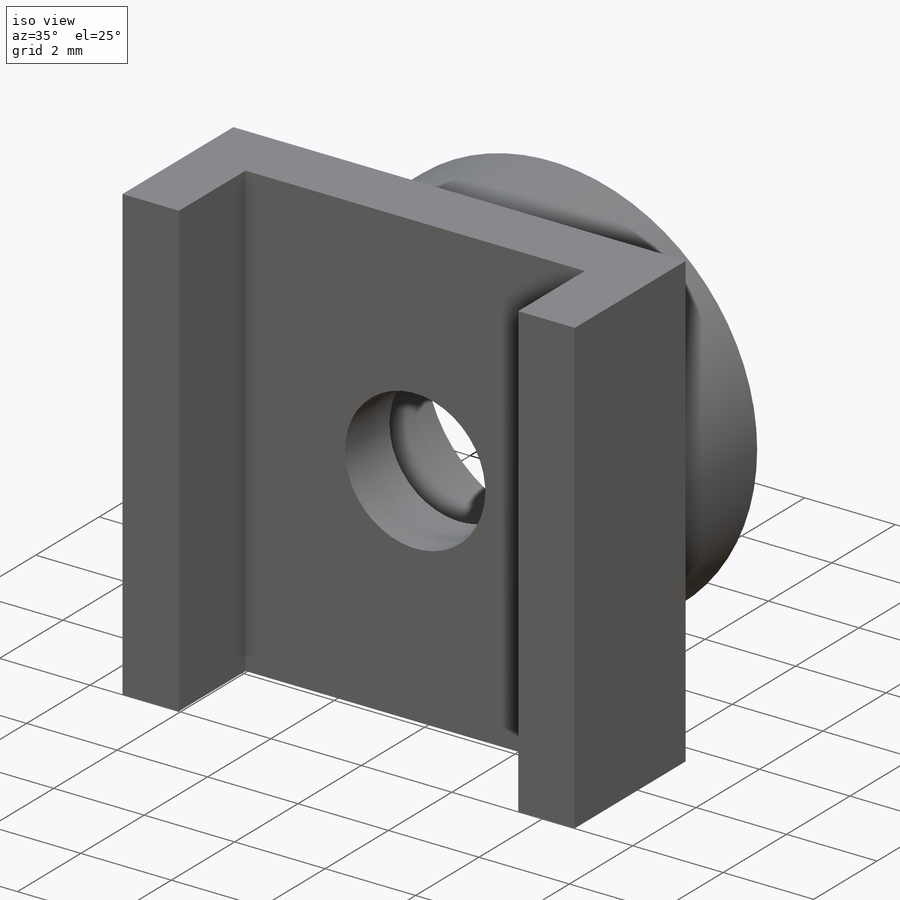
[diagram: iso view]
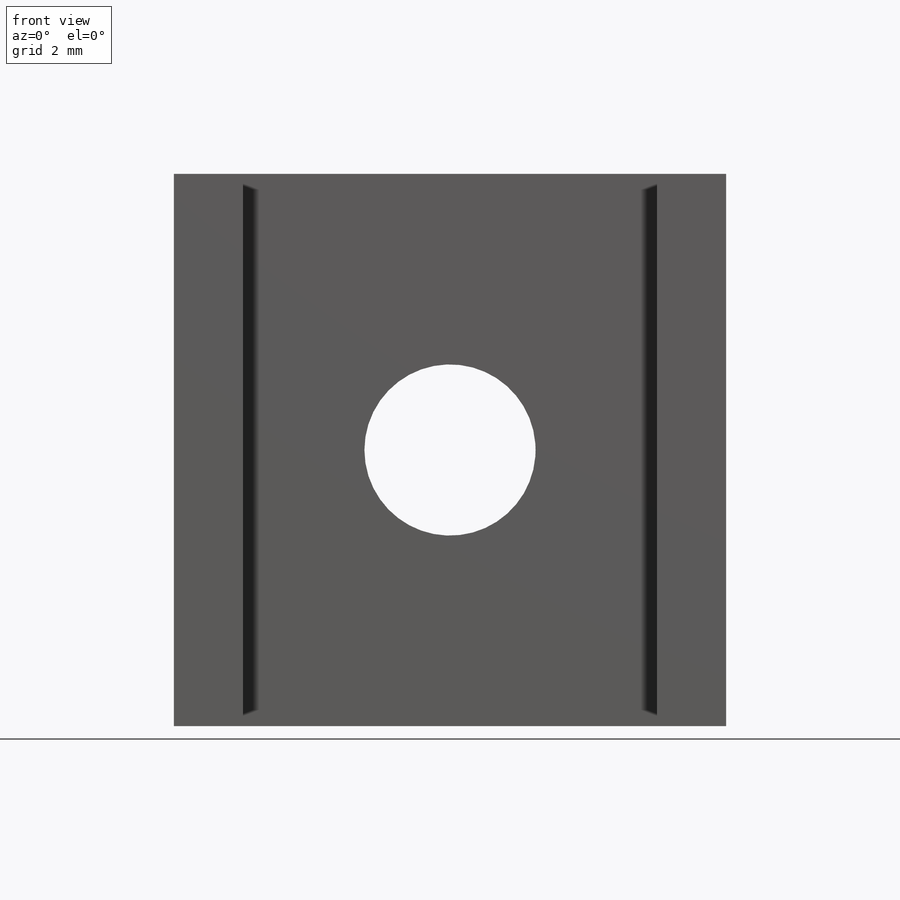
[diagram: front view]
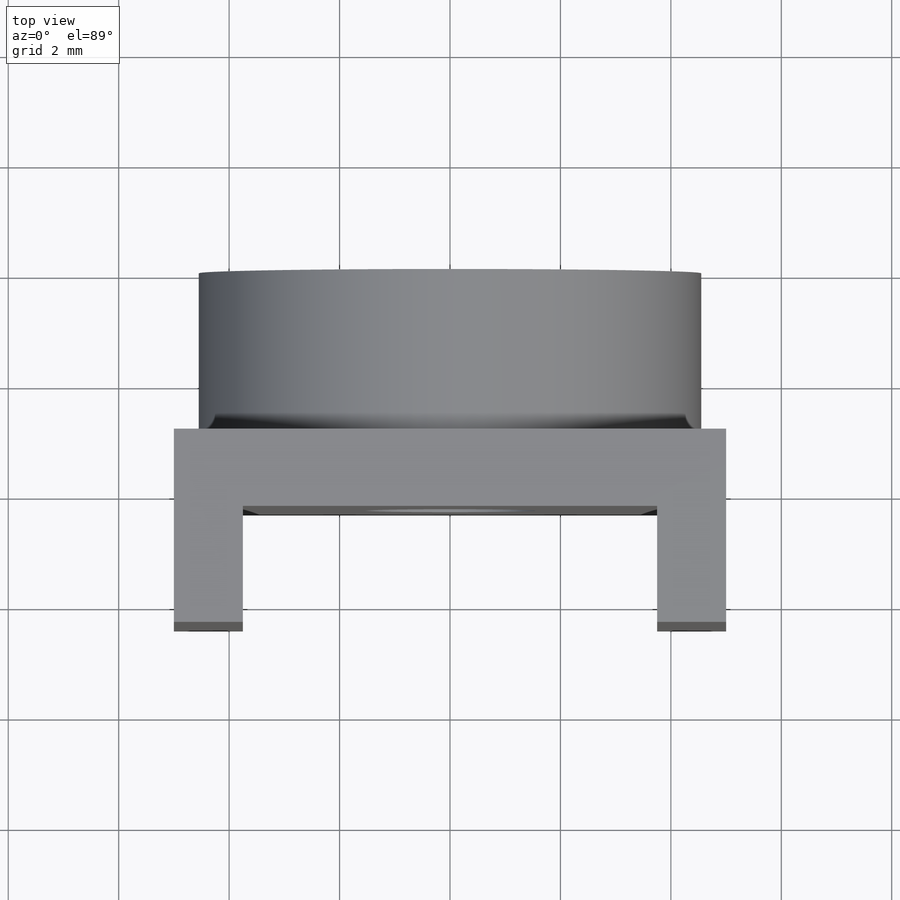
[diagram: top view]
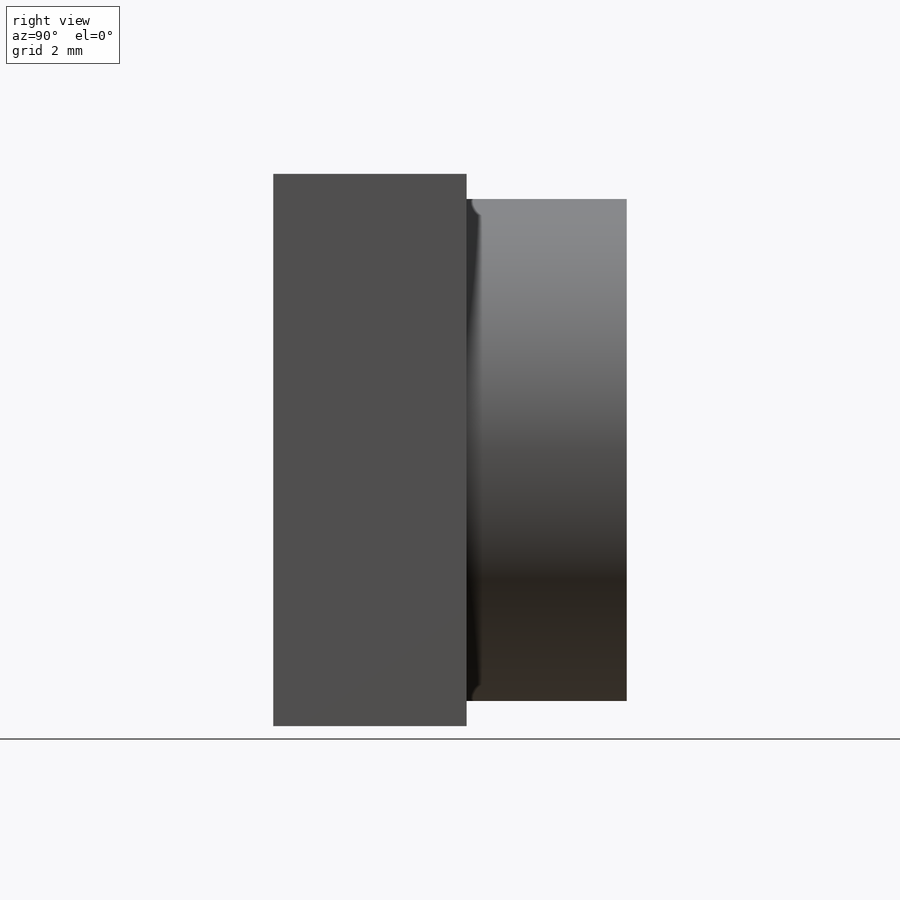
[diagram: right view]
SOLIDWORKS PART (.sldprt)
format: sldprt  version: not decoded by parser v0  size: 175,104 bytes
history: native  units: mm
features: plane x3, sketch x3, extrude x3, material x1 (+14 scaffold rows collapsed)
feature tree (24):
  scaffold x14  (default folders/planes/origin — collapsed)
  material  "ПК/АБС"
  plane  "Спереди"
  plane  "Сверху"
  plane  "Справа"
  sketch  "Эскиз1"  dims[D1=9.1mm D2=5.6mm]
  extrude  "Вытянуть1"  Depth=2.9mm
  sketch  "Эскиз2"  dims[D3=3.1mm D1=10.0mm D2=10.0mm]
  extrude  "Вытянуть2"  Depth=1.4mm
  sketch  "Эскиз3"  dims[D1=7.5mm D2=1.25mm]
  extrude  "Вытянуть3"  Depth=2.1mm
decode coverage: 6 of 6 modeling features carry decoded parameters
note: suppression state not decoded; provenance and decode notes live in map.json
